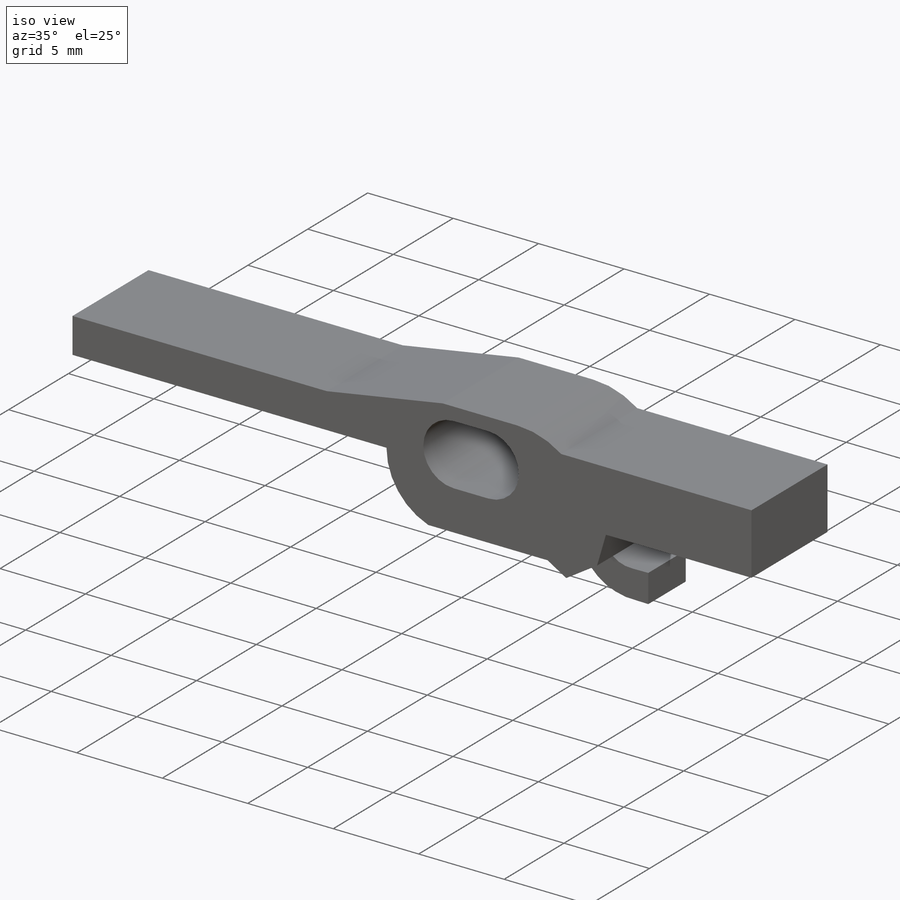
[diagram: iso view]
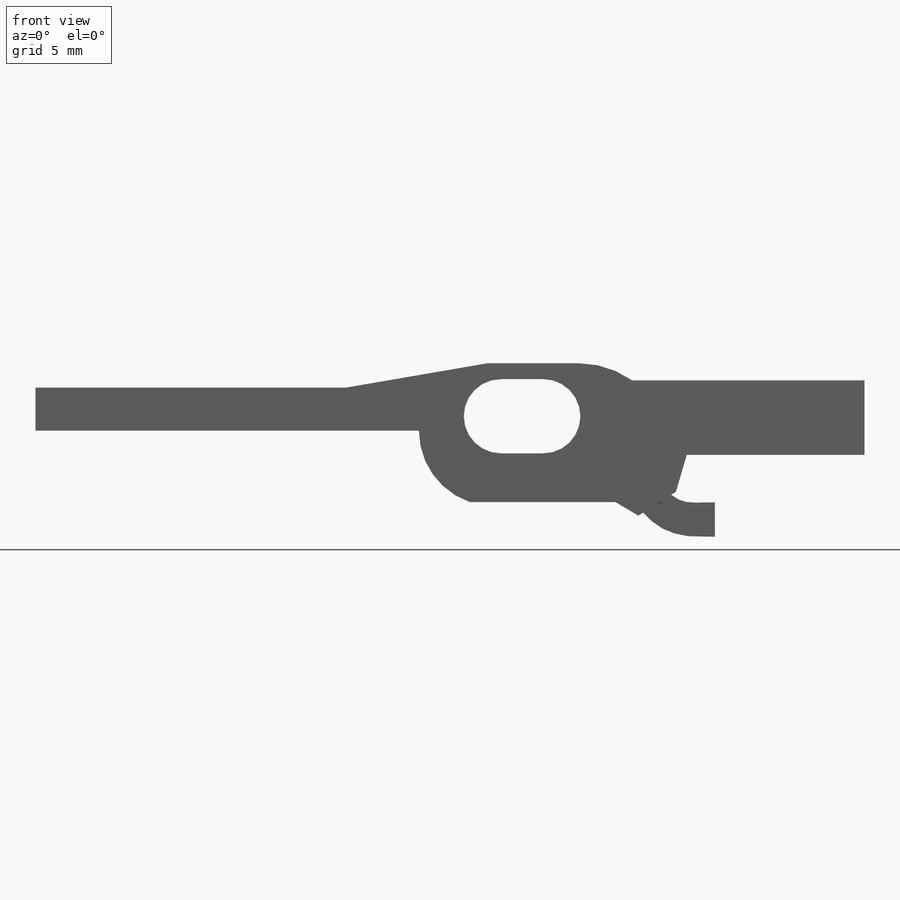
[diagram: front view]
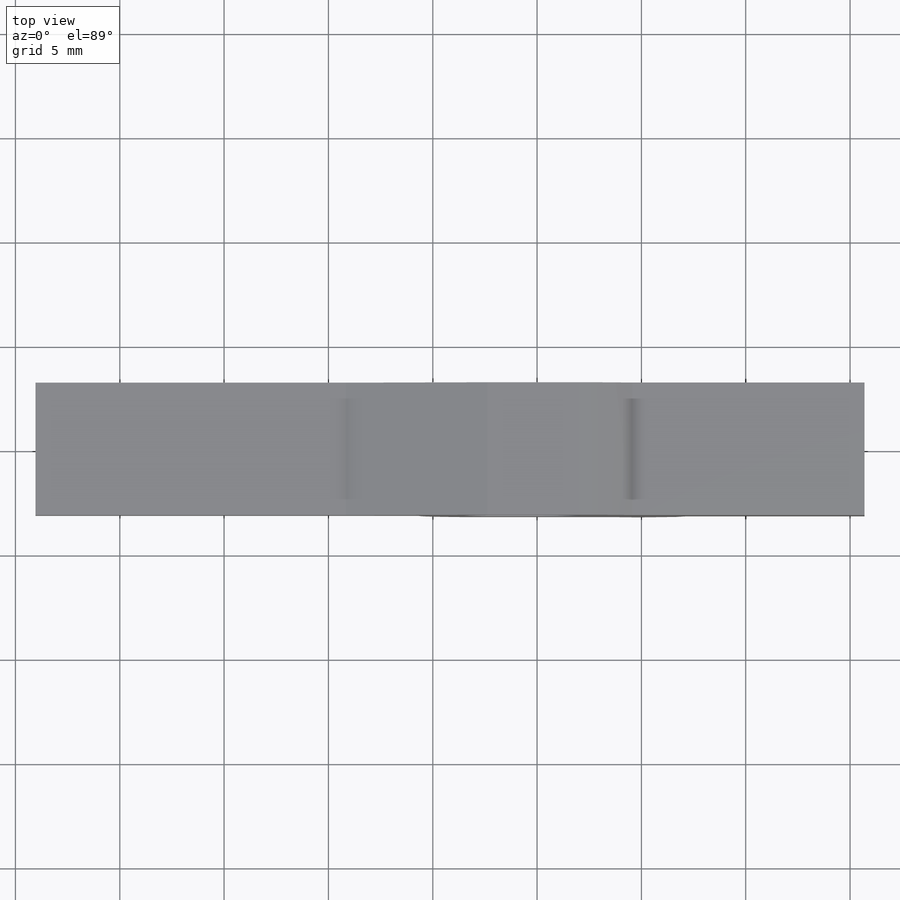
[diagram: top view]
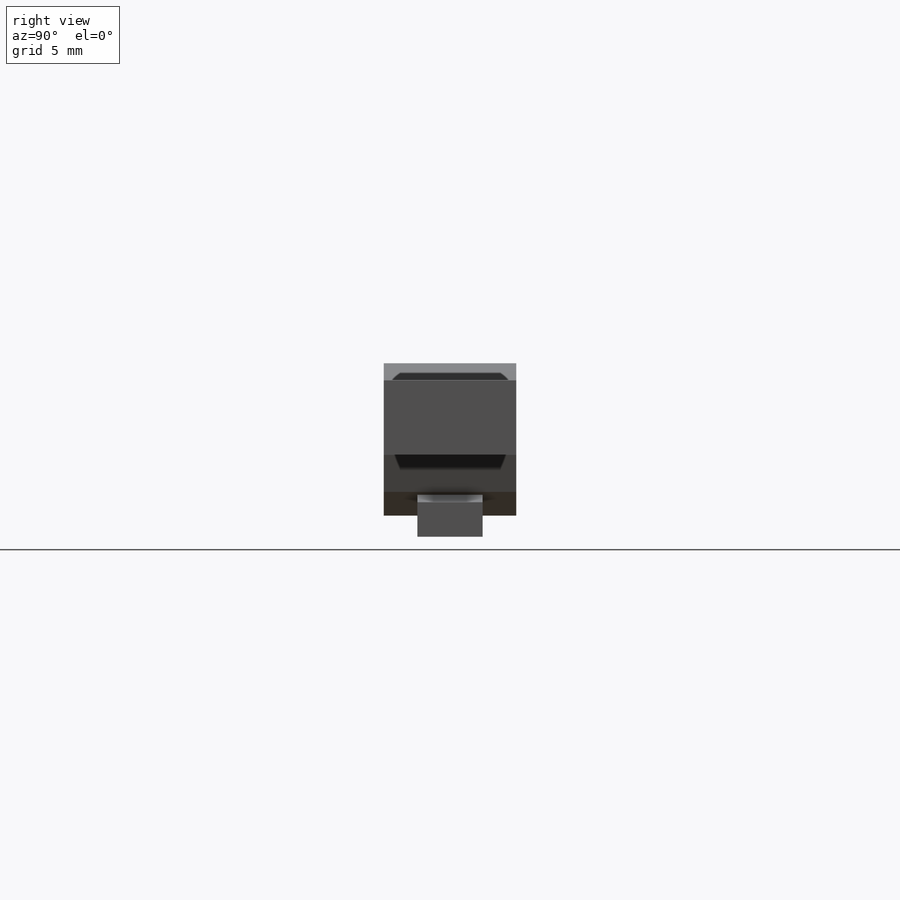
[diagram: right view]
SOLIDWORKS PART (.sldprt)
format: sldprt  version: not decoded by parser v0  size: 342,528 bytes
history: native  units: mm
features: sketch x10, extrude x4, plane x2, material x1, cut_extrude x1 (+13 scaffold rows collapsed)
feature tree (31):
  scaffold x13  (default folders/planes/origin — collapsed)
  material  "Alloy Steel"
  sketch  "Sketch1"  dims[c1.D12=1.6129mm c1.D13=1.6129mm c1.D14=1.6129mm c2.D12=1.6129mm c2.D13=1.6129mm c2.D1=~12.434567mm c3.D1=270.0deg c4.D1=2.8194mm c4.D2=2.54mm c4.D3=12.2682mm c4.D4=1.1684mm c4.D5=6.7818mm c4.D6=4.445mm c4.D7=2.794mm c4.D8=10.8966mm c4.D9=8.382mm c4.D10=1.0922mm c4.D11=1.524mm c4.D12=0.762mm c4.D13=0.9906mm c4.D14=0.508mm c4.D15=6.9342mm c4.D16=3.048mm c4.D17=1.524mm c4.D18=2.3368mm c4.D19=~1.464241mm c5.D11=3.556mm c5.D12=18.034mm c5.D13=13.4366mm c5.D14=36.576mm c6.D12=5.588mm c6.D13=17.9832mm c6.D14=2.3368mm c6.D15=2.4384mm c6.D16=6.985mm c6.D18=~2.512665mm c7.D16=2.1336mm]
  extrude  "Boss-Extrude1"  Depth=6.35mm
  plane  "Plane1"  Offset=0mm
  plane  "Plane2"  Offset=6.477mm
  sketch  "Sketch3"  dims[D1=1.651mm D2=3.1242mm D3=4.064mm]
  sketch  "Sketch4"  dims[D1=1.6002mm D2=3.1242mm]
  sketch  "3DSketch1"  dims[D1=1.016mm]
  sketch  "Sketch5"  dims[D1=0.762mm]
  cut_extrude  "Cut-Extrude1"  [1 undecoded]
  sketch  "Sketch7"  dims[D1=5.08mm]
  sketch  "Sketch9"
  sketch  "Sketch10"
  extrude  "Boss-Extrude2"  [1 undecoded]
  sketch  "Sketch11"
  extrude  "Boss-Extrude3"  Depth=2.54mm
  sketch  "Sketch12"
  extrude  "Boss-Extrude4"  [1 undecoded]
decode coverage: 8 of 15 modeling features carry decoded parameters
note: ~ marks probable driven/reference dimensions
note: 3 parameter values undecoded
summary: no parameter record found for 3 features
note: suppression state not decoded; provenance and decode notes live in map.json
